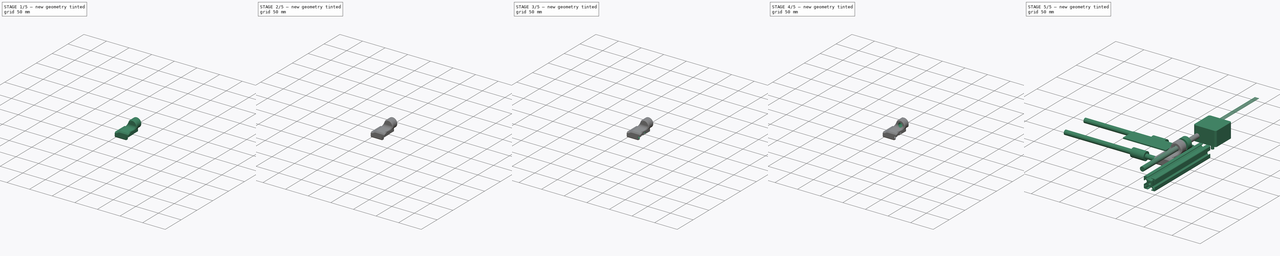
[diagram: build sequence overview — one tinted view per stage of 5, left to right]
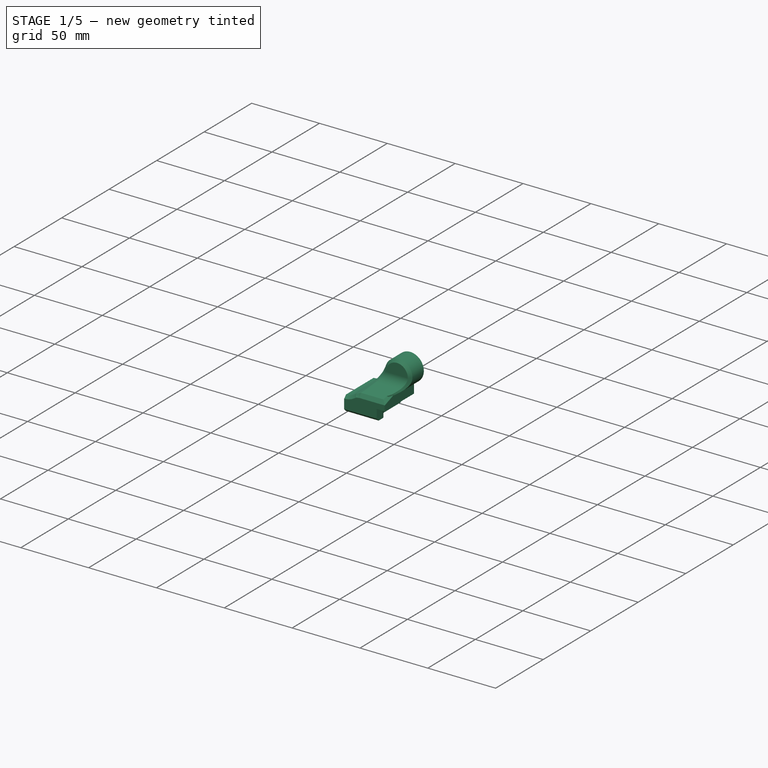
[diagram: stage 1 of 5 — iso view after this stage's code; geometry added in this stage tinted green]
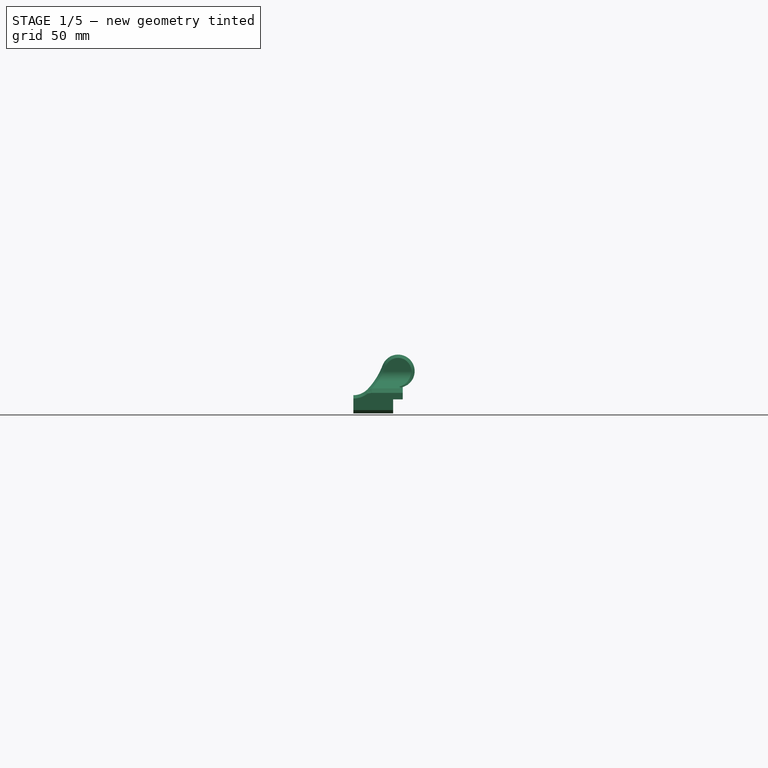
[diagram: stage 1 of 5 — front view after this stage's code; geometry added in this stage tinted green]
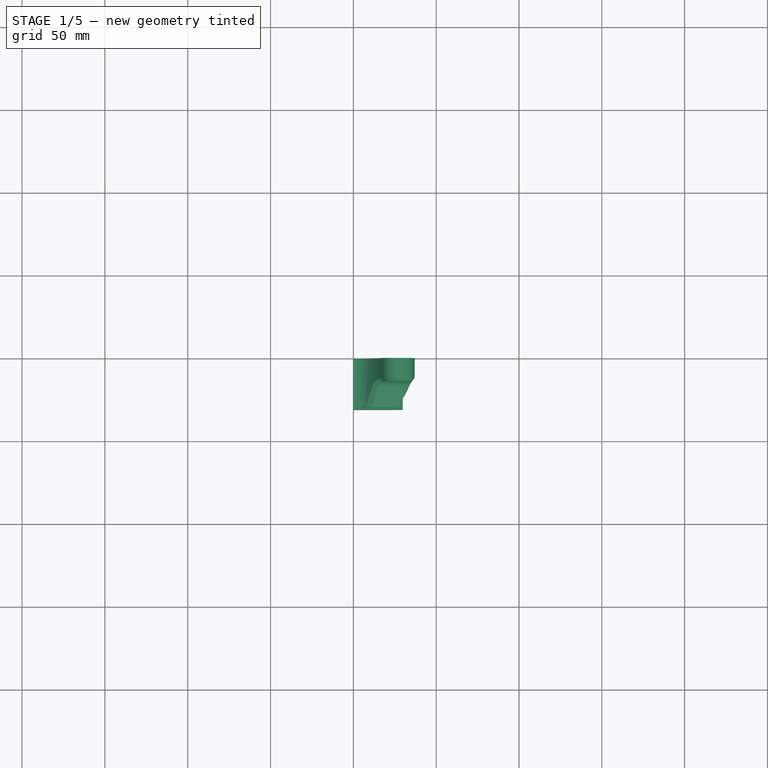
[diagram: stage 1 of 5 — top view after this stage's code; geometry added in this stage tinted green]
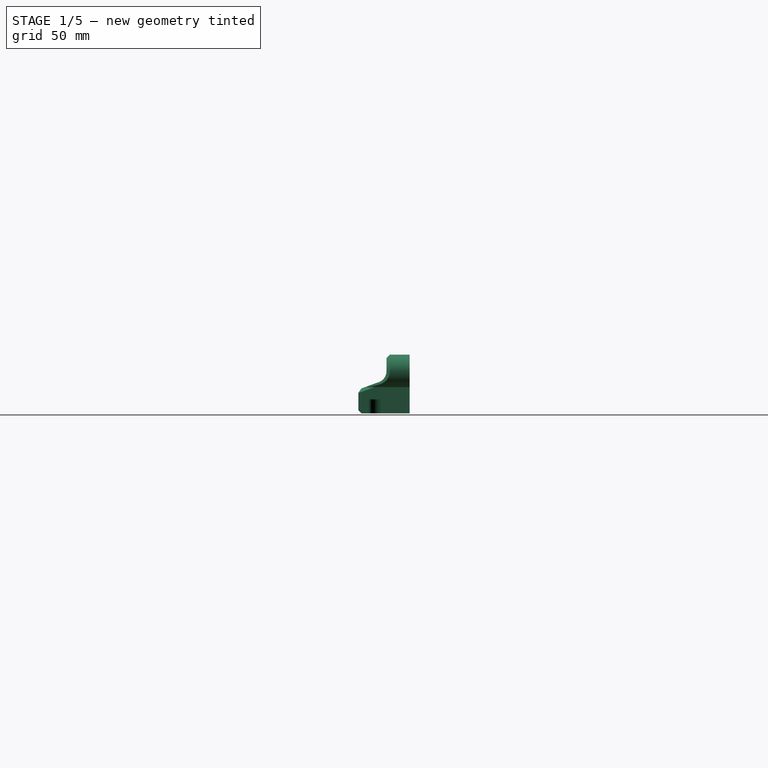
[diagram: stage 1 of 5 — right view after this stage's code; geometry added in this stage tinted green]
FCSTD DOCUMENT  (FreeCAD 0.16R5342 (Git))
Label: Ycarriage
License: All rights reserved
LicenseURL: http://en.wikipedia.org/wiki/All_rights_reserved
objects: Part::Feature×12, Sketcher::SketchObject×11, PartDesign::Pocket×9, PartDesign::Pad×2, Part::Chamfer×2, Part::Fillet×2, Part::Compound×1, Part::Mirroring×1, Part::MultiFuse×1, App::DocumentObjectGroup×1
note: 52 computed .brp shape members not serialized (recipe doc carries the construction recipe); baked Part::Feature solids carry a one-line shape summary decoded from their .brp

FEATURE [Sketcher::SketchObject] Sketch  label="Base"
  Placement = pos=(0,0,0) rot=(-1,0,0;4.71239rad)
  sketch-geometry (7):
    g0: LineSegment StartX=0 StartY=5.5 StartZ=0 EndX=0 EndY=-5.5 EndZ=0
    g1: LineSegment StartX=0 StartY=-5.5 StartZ=0 EndX=29.8 EndY=-5.5 EndZ=0
    g2: LineSegment StartX=29.8 StartY=-5.5 StartZ=0 EndX=29.8 EndY=10.4 EndZ=0
    g3: ArcOfCircle CenterX=27 CenterY=20 CenterZ=0 NormalX=0 NormalY=0 NormalZ=1 Radius=10 StartAngle=4.99618 EndAngle=9.06324
    g4: GeomPoint [constr] X=0 Y=0 Z=0
    g5: ArcOfCircle CenterX=-22.5738 CenterY=38.7468 CenterZ=0 NormalX=0 NormalY=0 NormalZ=1 Radius=43 StartAngle=5.52806 EndAngle=5.92165
    g6: ArcOfCircle CenterX=0 CenterY=17.5 CenterZ=0 NormalX=0 NormalY=0 NormalZ=1 Radius=12 StartAngle=4.71239 EndAngle=5.52806
  constraints (22):
    c: Coincident(g0,g1)
    c: Coincident(g2,g3)
    c: Vertical(g0)
    c: Horizontal(g1)
    c: PointOnObject(g0,g-2)
    c: DistanceX(g3) = 27
    c: DistanceY(g3) = 20
    c: Radius(g3) = 10
    c: DistanceY(g0) = -11
    c: Symmetric(g0,g0,g4)
    c: PointOnObject(g4,g-1)
    c: Vertical(g2)
    c: Coincident(g2,g1)
    c: DistanceX(g1) = 29.8
    c: Coincident(g6,g5)
    c: Coincident(g5,g3)
    c: Tangent(g5,g3)
    c: Tangent(g5,g6)
    c: Coincident(g6,g0)
    c: Perpendicular(g6,g0)
    c: Radius(g6) = 12
    c: Radius(g5) = 43
FEATURE [PartDesign::Pad] Pad  label="Base001"
  Length = 31
  Length2 = 100
  Placement = pos=(0,0,0) rot=(-1,0,0;4.71239rad)
  Sketch = -> Sketch
  Type = 0
FEATURE [Sketcher::SketchObject] Sketch001  label="SideCut"
  Placement = pos=(0,0,0) rot=(0.707107,0,-0.707107;3.14159rad)
  Support = -> Pad [Face1]
  sketch-geometry (6):
    g0: GeomPoint [constr] X=-30 Y=14 Z=0
    g1: ArcOfCircle CenterX=-20 CenterY=21 CenterZ=0 NormalX=0 NormalY=0 NormalZ=1 Radius=7 StartAngle=4.71239 EndAngle=5.93412
    g2: LineSegment StartX=-20 StartY=14 StartZ=0 EndX=-43.1703 EndY=14 EndZ=0
    g3: LineSegment StartX=-13.4222 StartY=18.6058 StartZ=0 EndX=-7.32195 EndY=35.3661 EndZ=0
    g4: LineSegment StartX=-43.1703 StartY=14 StartZ=0 EndX=-43.1703 EndY=35.3661 EndZ=0
    g5: LineSegment StartX=-43.1703 StartY=35.3661 StartZ=0 EndX=-7.32195 EndY=35.3661 EndZ=0
  constraints (16):
    c: DistanceX(g0) = -30
    c: DistanceY(g0) = 14
    c: Horizontal(g2)
    c: Tangent(g1,g2)
    c: Coincident(g3,g1)
    c: Tangent(g3,g1)
    c: Coincident(g4,g5)
    c: Coincident(g4,g2)
    c: Coincident(g5,g3)
    c: Horizontal(g5)
    c: Vertical(g4)
    c: Coincident(g2,g1)
    c: PointOnObject(g0,g2)
    c: Angle(g3) = 1.22173
    c: DistanceX(g0,g1) = 10
    c: Radius(g1) = 7
FEATURE [PartDesign::Pocket] Pocket  label="SideCut001"
  Length = 5
  Placement = pos=(0,0,0) rot=(-1,0,0;4.71239rad)
  Sketch = -> Sketch001
  Type = 1
FEATURE [Part::Chamfer] Chamfer
  Base = -> Pocket
  Edges = 11 edges r=2: [Edge7,Edge8,Edge11,Edge16,Edge18,Edge19,Edge20,Edge21,Edge22,Edge25,Edge26]
FEATURE [Sketcher::SketchObject] Sketch002  label="PulleyPocket"
  Placement = pos=(0,0,-5.5) rot=(1,0,0;3.14159rad)
  Support = -> Chamfer [Face6]
  sketch-geometry (7):
    g0: LineSegment StartX=20 StartY=17 StartZ=0 EndX=20 EndY=-6.649 EndZ=0
    g1: LineSegment StartX=20 StartY=-6.649 StartZ=0 EndX=40.092 EndY=-6.649 EndZ=0
    g2: LineSegment StartX=40.092 StartY=-6.649 StartZ=0 EndX=40.092 EndY=32.3883 EndZ=0
    g3: ArcOfCircle CenterX=27 CenterY=17 CenterZ=0 NormalX=0 NormalY=0 NormalZ=1 Radius=7 StartAngle=2.21566 EndAngle=3.14159
    g4: ArcOfCircle CenterX=20.9726 CenterY=25.0137 CenterZ=0 NormalX=0 NormalY=0 NormalZ=1 Radius=3.02736 StartAngle=5.35726 EndAngle=6.28319
    g5: LineSegment StartX=24 StartY=25.0137 StartZ=0 EndX=24 EndY=32.3883 EndZ=0
    g6: LineSegment StartX=24 StartY=32.3883 StartZ=0 EndX=40.092 EndY=32.3883 EndZ=0
  constraints (19):
    c: Coincident(g0,g1)
    c: Coincident(g1,g2)
    c: Horizontal(g1)
    c: Vertical(g0)
    c: Vertical(g2)
    c: DistanceX(g3) = 27
    c: DistanceY(g3) = 17
    c: Radius(g3) = 7
    c: Coincident(g0,g3)
    c: Tangent(g3,g0)
    c: Coincident(g4,g3)
    c: Tangent(g4,g3)
    c: Coincident(g5,g6)
    c: Coincident(g6,g2)
    c: Coincident(g5,g4)
    c: Vertical(g5)
    c: Horizontal(g6)
    c: Tangent(g4,g5)
    c: DistanceX(g5) = 24
FEATURE [PartDesign::Pocket] Pocket001  label="PulleyPocket001"
  Length = 8.5
  Sketch = -> Sketch002
  Type = 0
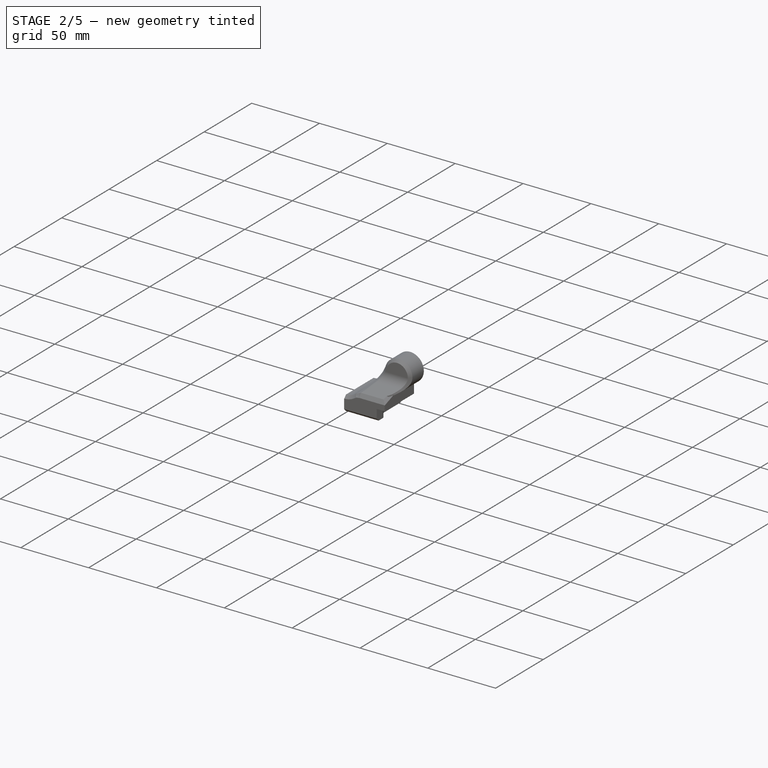
[diagram: stage 2 of 5 — iso view after this stage's code; geometry added in this stage tinted green]
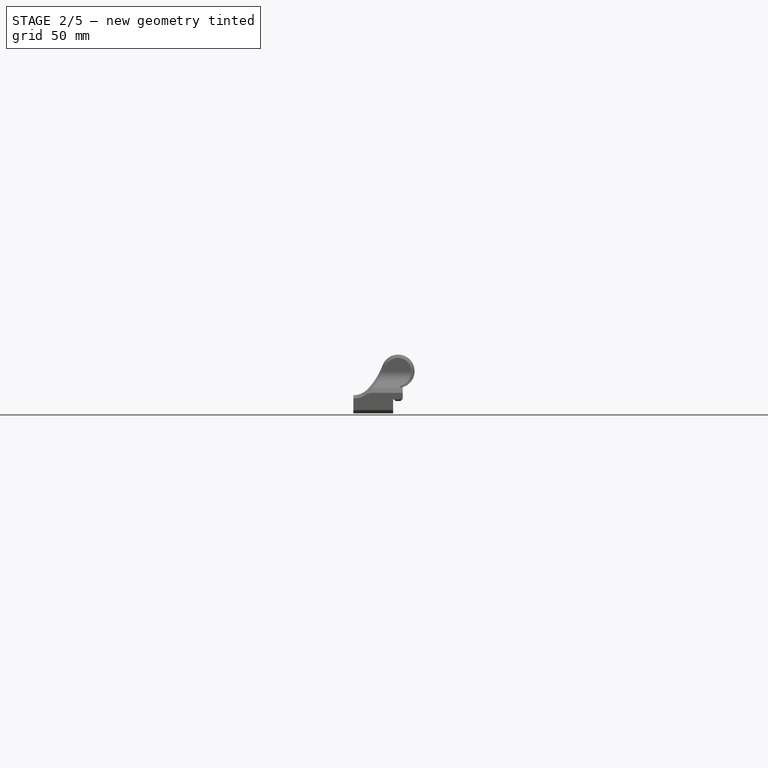
[diagram: stage 2 of 5 — front view after this stage's code; geometry added in this stage tinted green]
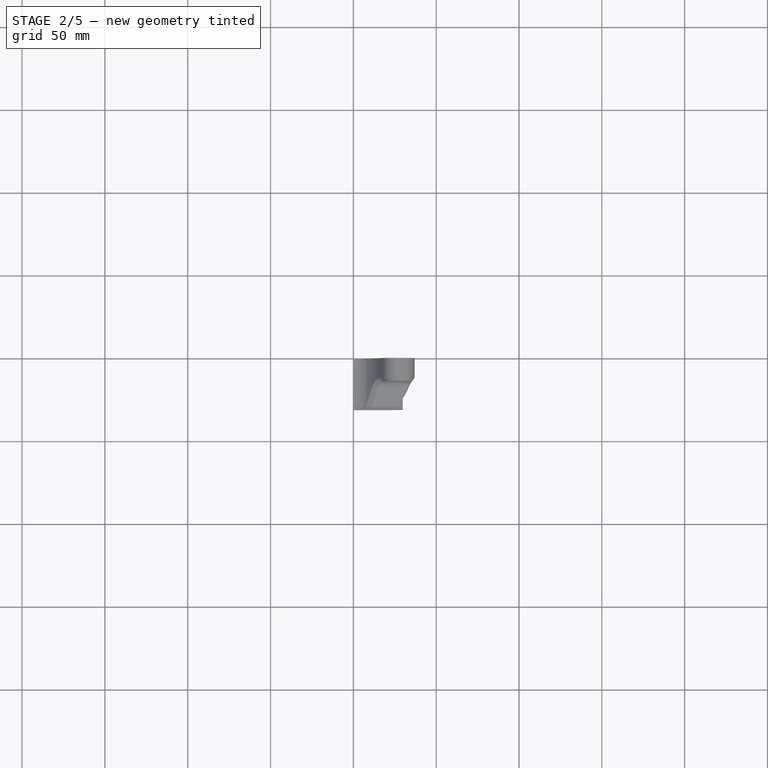
[diagram: stage 2 of 5 — top view after this stage's code; geometry added in this stage tinted green]
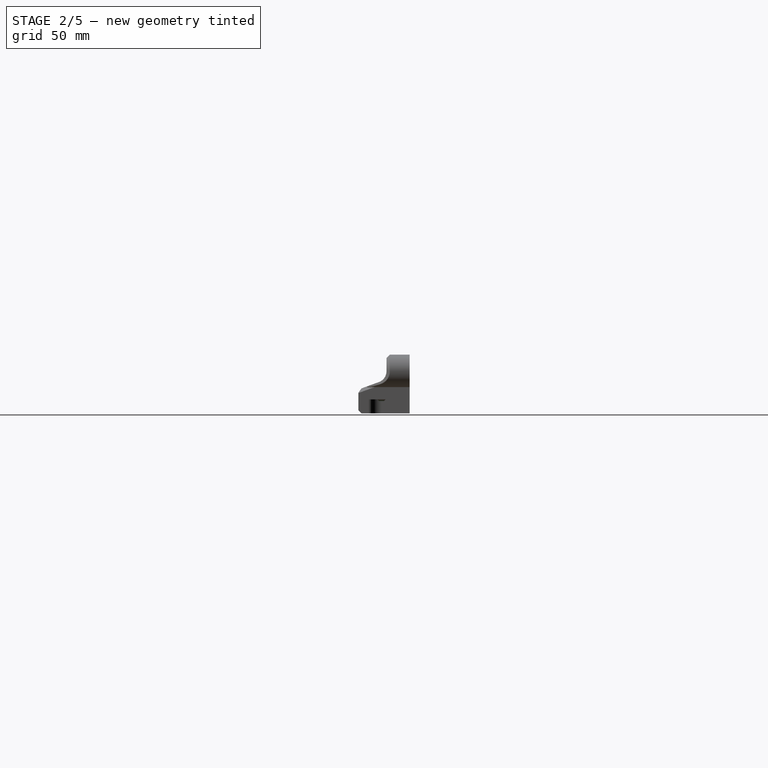
[diagram: stage 2 of 5 — right view after this stage's code; geometry added in this stage tinted green]
FEATURE [Sketcher::SketchObject] Sketch003  label="BearingPad"
  Placement = pos=(0,0,3) rot=(1,0,0;3.14159rad)
  Support = -> Pocket001 [Face12]
  sketch-geometry (1):
    g0: Circle CenterX=27 CenterY=17 CenterZ=0 NormalX=0 NormalY=0 NormalZ=1 Radius=2.5
  constraints (3):
    c: DistanceX(g0) = 27
    c: DistanceY(g0) = 17
    c: Radius(g0) = 2.5
FEATURE [PartDesign::Pad] Pad001  label="BearingPad001"
  Length = 1
  Length2 = 100
  Sketch = -> Sketch003
  Type = 0
FEATURE [Part::Chamfer] Chamfer001  label="PrintableChamfer"
  Base = -> Pad001
  Edges = 1 edges r=0.99: [Edge68]
FEATURE [Sketcher::SketchObject] Sketch004  label="BearingBolt"
  Placement = pos=(0,0,2) rot=(1,0,0;3.14159rad)
  Support = -> Chamfer001 [Face4]
  sketch-geometry (1):
    g0: Circle CenterX=27 CenterY=17 CenterZ=0 NormalX=0 NormalY=0 NormalZ=1 Radius=1.5
  constraints (3):
    c: DistanceY(g0) = 17
    c: DistanceX(g0) = 27
    c: Radius(g0) = 1.5
FEATURE [PartDesign::Pocket] Pocket002  label="BearingBolt001"
  Length = 10
  Sketch = -> Sketch004
  Type = 0
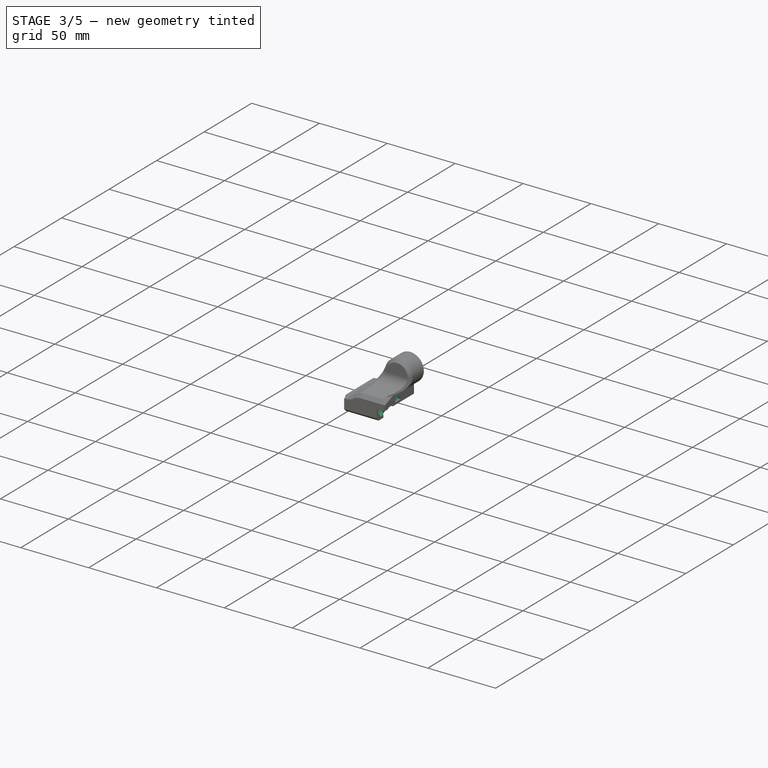
[diagram: stage 3 of 5 — iso view after this stage's code; geometry added in this stage tinted green]
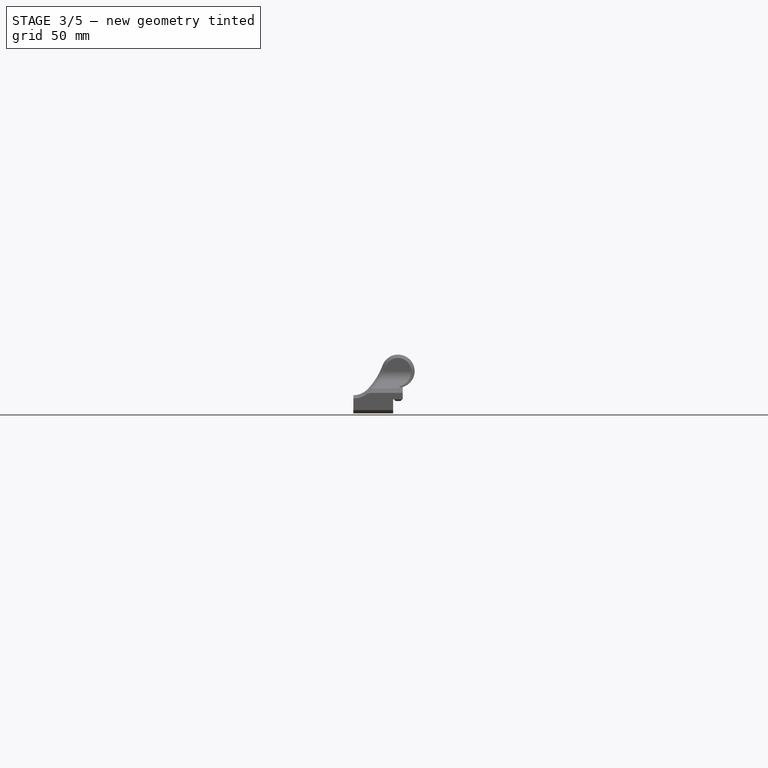
[diagram: stage 3 of 5 — front view after this stage's code; geometry added in this stage tinted green]
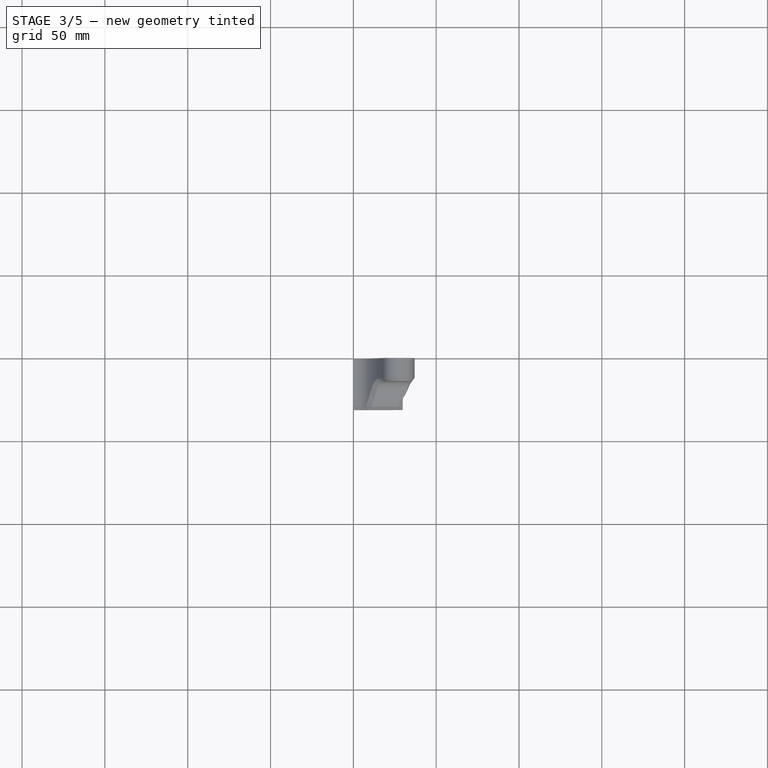
[diagram: stage 3 of 5 — top view after this stage's code; geometry added in this stage tinted green]
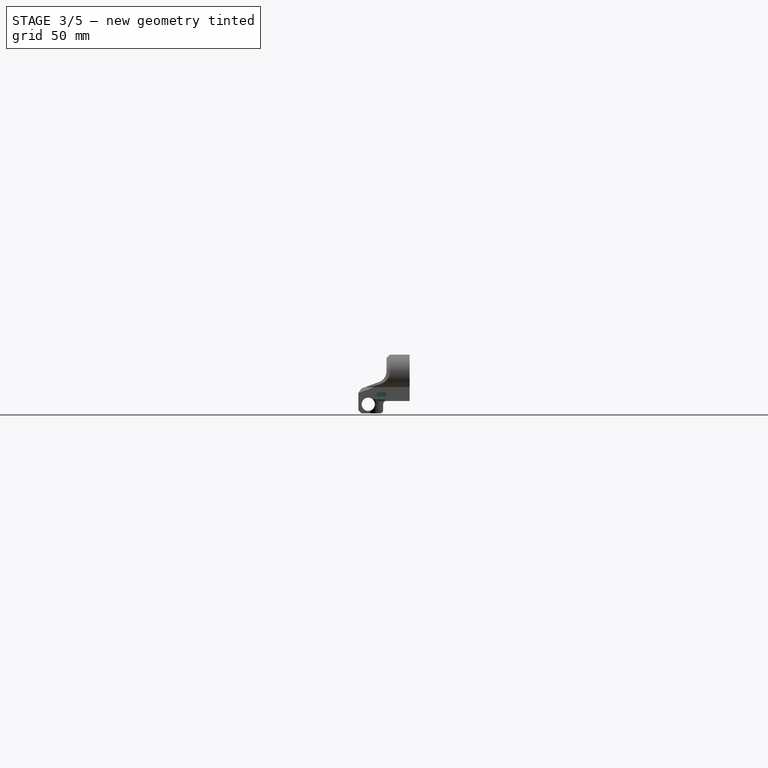
[diagram: stage 3 of 5 — right view after this stage's code; geometry added in this stage tinted green]
FEATURE [Sketcher::SketchObject] Sketch005  label="BearingNut"
  Placement = pos=(29.8,0,0) rot=(0.57735,0.57735,0.57735;2.0944rad)
  Support = -> Pocket002 [Face11]
  sketch-geometry (5):
    g0: LineSegment StartX=-19.8 StartY=7.3 StartZ=0 EndX=-14.2 EndY=7.3 EndZ=0
    g1: LineSegment StartX=-14.2 StartY=7.3 StartZ=0 EndX=-14.2 EndY=4.7 EndZ=0
    g2: LineSegment StartX=-14.2 StartY=4.7 StartZ=0 EndX=-19.8 EndY=4.7 EndZ=0
    g3: LineSegment StartX=-19.8 StartY=4.7 StartZ=0 EndX=-19.8 EndY=7.3 EndZ=0
    g4: GeomPoint [constr] X=-17 Y=6 Z=0
  constraints (13):
    c: Coincident(g0,g1)
    c: Coincident(g1,g2)
    c: Coincident(g2,g3)
    c: Coincident(g3,g0)
    c: Horizontal(g0)
    c: Horizontal(g2)
    c: Vertical(g1)
    c: Vertical(g3)
    c: DistanceY(g1) = -2.6
    c: DistanceX(g2) = -5.6
    c: Symmetric(g0,g1,g4)
    c: DistanceX(g4) = -17
    c: DistanceY(g4) = 6
FEATURE [PartDesign::Pocket] Pocket003  label="BearingNut001"
  Length = 7
  Sketch = -> Sketch005
  Type = 0
FEATURE [Sketcher::SketchObject] Sketch006  label="StringLane"
  Placement = pos=(20,0,0) rot=(0.57735,0.57735,0.57735;2.0944rad)
  Support = -> Pocket003 [Face7]
  sketch-geometry (4):
    g0: LineSegment StartX=-16 StartY=2 StartZ=0 EndX=0 EndY=2 EndZ=0
    g1: LineSegment StartX=0 StartY=2 StartZ=0 EndX=0 EndY=-9.75625 EndZ=0
    g2: LineSegment StartX=0 StartY=-9.75625 StartZ=0 EndX=-16 EndY=-9.75625 EndZ=0
    g3: LineSegment StartX=-16 StartY=-9.75625 StartZ=0 EndX=-16 EndY=2 EndZ=0
  constraints (11):
    c: Coincident(g0,g1)
    c: Coincident(g1,g2)
    c: Coincident(g2,g3)
    c: Coincident(g3,g0)
    c: Horizontal(g0)
    c: Horizontal(g2)
    c: Vertical(g1)
    c: Vertical(g3)
    c: PointOnObject(g1,g-2)
    c: DistanceX(g0) = 16
    c: DistanceY(g0) = 2
FEATURE [PartDesign::Pocket] Pocket004  label="StringLane001"
  Length = 5
  Sketch = -> Sketch006
  Type = 1
FEATURE [Part::Fillet] Fillet
  Base = -> Pocket004
  Edges = 2 edges r=2: [Edge47,Edge50]
FEATURE [Sketcher::SketchObject] Sketch007  label="XRod"
  Placement = pos=(0,0,0) rot=(0.57735,-0.57735,-0.57735;2.0944rad)
  Support = -> Fillet [Face7]
  sketch-geometry (1):
    g0: Circle CenterX=25 CenterY=0 CenterZ=0 NormalX=0 NormalY=0 NormalZ=1 Radius=4
  constraints (3):
    c: PointOnObject(g0,g-1)
    c: Radius(g0) = 4
    c: DistanceX(g0) = 25
FEATURE [PartDesign::Pocket] Pocket005  label="XRod001"
  Length = 5
  Sketch = -> Sketch007
  Type = 1
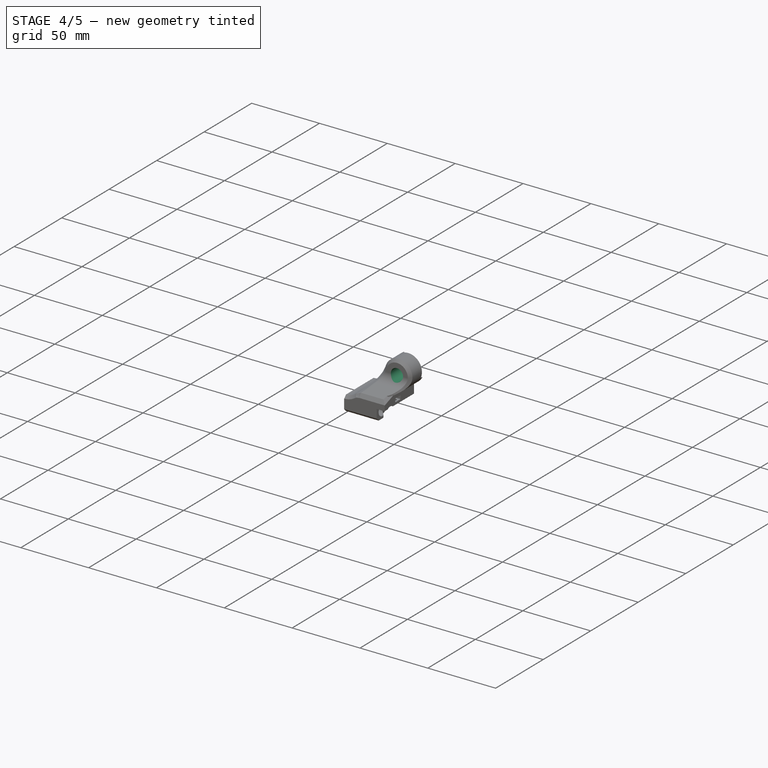
[diagram: stage 4 of 5 — iso view after this stage's code; geometry added in this stage tinted green]
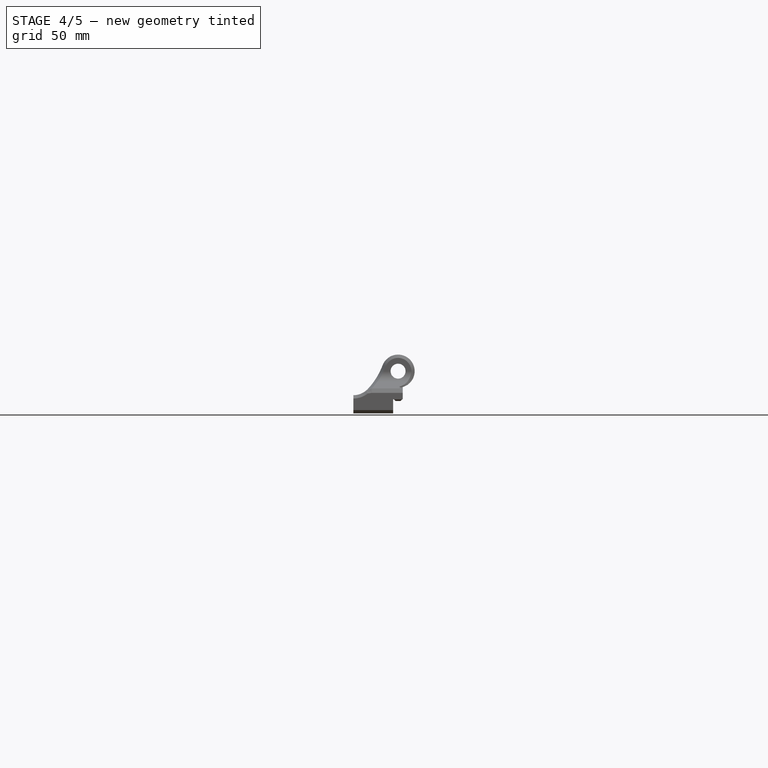
[diagram: stage 4 of 5 — front view after this stage's code; geometry added in this stage tinted green]
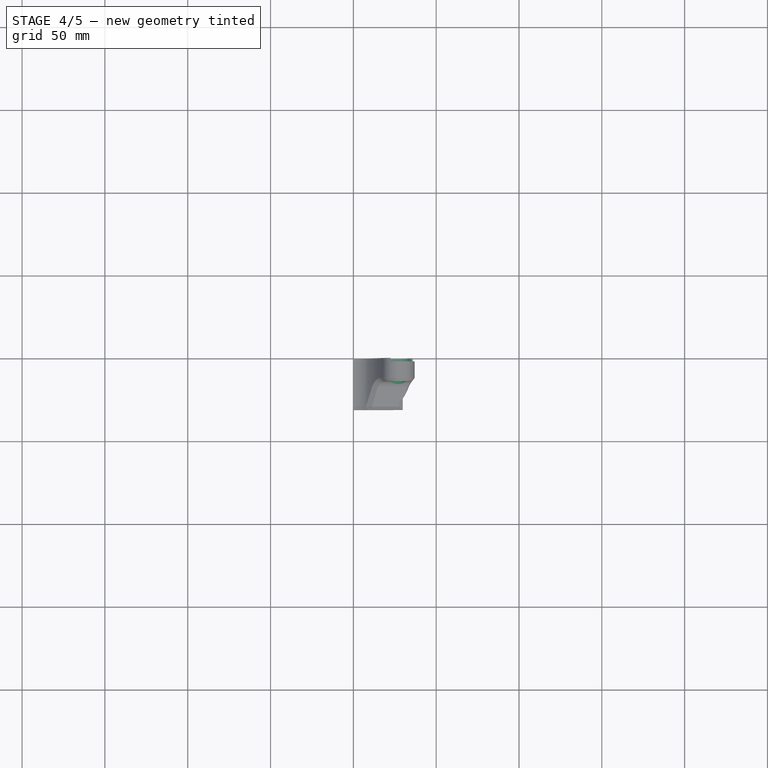
[diagram: stage 4 of 5 — top view after this stage's code; geometry added in this stage tinted green]
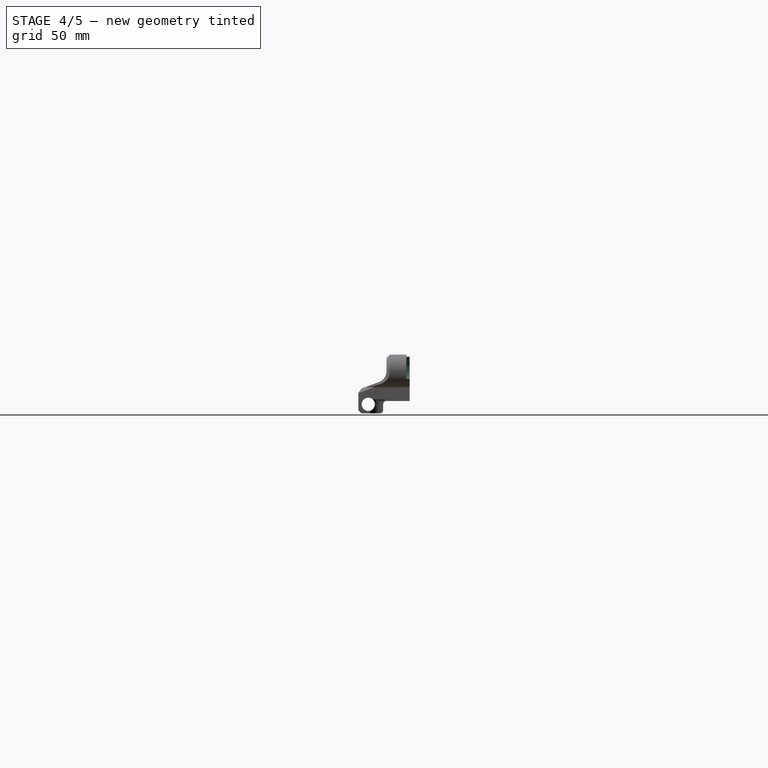
[diagram: stage 4 of 5 — right view after this stage's code; geometry added in this stage tinted green]
FEATURE [Sketcher::SketchObject] Sketch008  label="YRod"
  Placement = pos=(0,-31,0) rot=(1,0,0;1.5708rad)
  Support = -> Pocket005 [Face20]
  sketch-geometry (1):
    g0: Circle CenterX=27 CenterY=20 CenterZ=0 NormalX=0 NormalY=0 NormalZ=1 Radius=4.5
  constraints (3):
    c: Radius(g0) = 4.5
    c: DistanceX(g0) = 27
    c: DistanceY(g0) = 20
FEATURE [PartDesign::Pocket] Pocket006  label="YRod001"
  Length = 5
  Sketch = -> Sketch008
  Type = 1
FEATURE [Sketcher::SketchObject] Sketch009  label="TieHole"
  Placement = pos=(0,0,0) rot=(0,0.707107,0.707107;3.14159rad)
  Support = -> Pocket006 [Face12]
  sketch-geometry (7):
    g0: LineSegment [constr] StartX=-42.4144 StartY=24.1007 StartZ=0 EndX=-32.6569 EndY=14.3431 EndZ=0
    g1: LineSegment [constr] StartX=-31.1007 StartY=35.4144 StartZ=0 EndX=-21.3431 EndY=25.6569 EndZ=0
    g2: ArcOfCircle [constr] CenterX=-27 CenterY=20 CenterZ=0 NormalX=0 NormalY=0 NormalZ=1 Radius=8 StartAngle=3.92699 EndAngle=7.06858
    g3: LineSegment StartX=-20.636 StartY=26.364 StartZ=0 EndX=-30.3936 EndY=36.1215 EndZ=0
    g4: LineSegment StartX=-30.3936 StartY=36.1215 StartZ=0 EndX=-43.1215 EndY=23.3936 EndZ=0
    g5: LineSegment StartX=-43.1215 StartY=23.3936 StartZ=0 EndX=-33.364 EndY=13.636 EndZ=0
    g6: ArcOfCircle CenterX=-27 CenterY=20 CenterZ=0 NormalX=0 NormalY=0 NormalZ=1 Radius=9 StartAngle=3.92699 EndAngle=7.06858
  constraints (22):
    c: Coincident(g2,g1)
    c: Coincident(g2,g0)
    c: Tangent(g2,g0)
    c: Tangent(g1,g2)
    c: DistanceY(g2) = 20
    c: DistanceX(g2) = -27
    c: Coincident(g3,g4)
    c: PointOnObject(g1,g4)
    c: Coincident(g6,g2)
    c: Coincident(g5,g6)
    c: Coincident(g3,g6)
    c: Radius(g2) = 8
    c: Tangent(g5,g6)
    c: Tangent(g3,g6)
    c: Parallel(g1,g3)
    c: Parallel(g0,g5)
    c: Perpendicular(g3,g4)
    c: Angle(g1) = -0.785398
    c: Coincident(g5,g4)
    c: PointOnObject(g0,g4)
    c: Distance(g4) = 18
    c: Parallel(g0,g1)
FEATURE [PartDesign::Pocket] Pocket007  label="TieHole001"
  Length = 2
  Sketch = -> Sketch009
  Type = 0
FEATURE [Part::Fillet] Fillet001
  Base = -> Pocket007
  Edges = 2 edges r=0.3: [Edge79,Edge81]
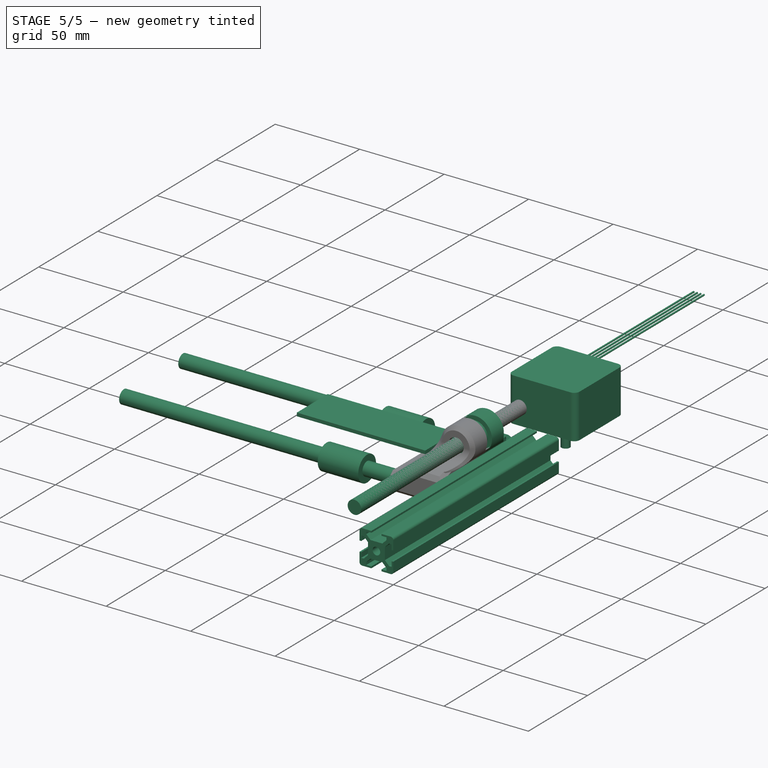
[diagram: stage 5 of 5 — iso view after this stage's code; geometry added in this stage tinted green]
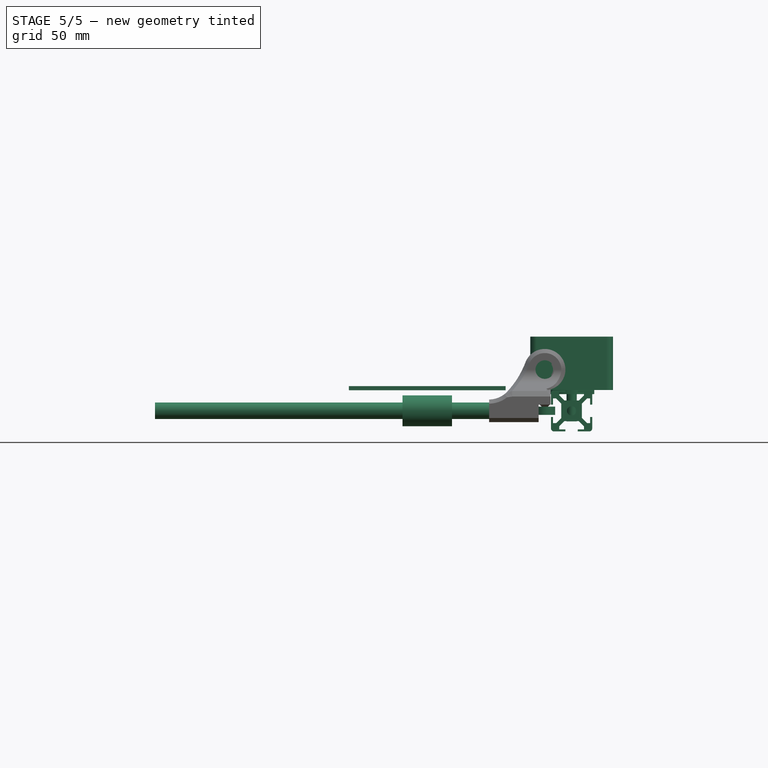
[diagram: stage 5 of 5 — front view after this stage's code; geometry added in this stage tinted green]
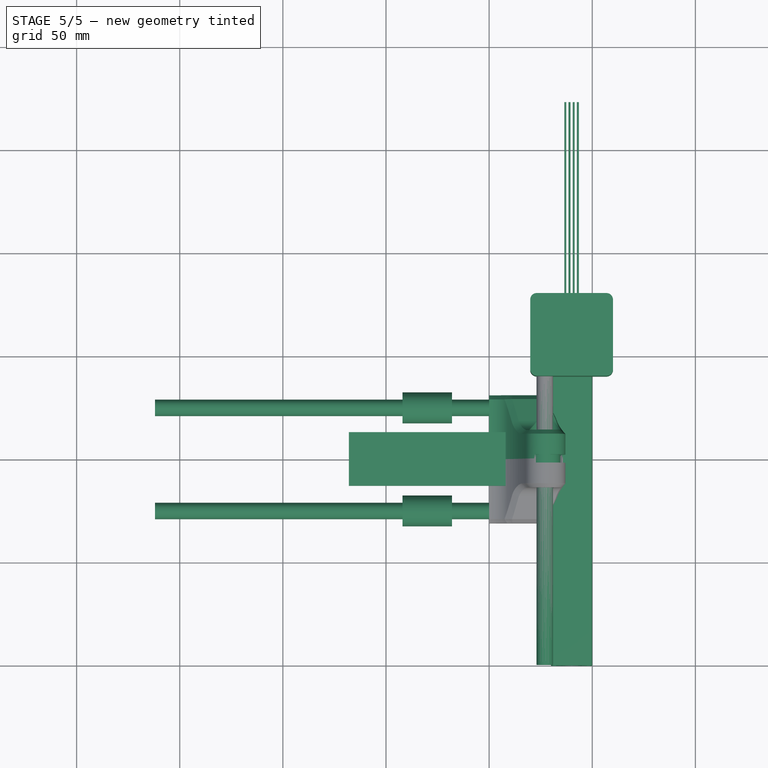
[diagram: stage 5 of 5 — top view after this stage's code; geometry added in this stage tinted green]
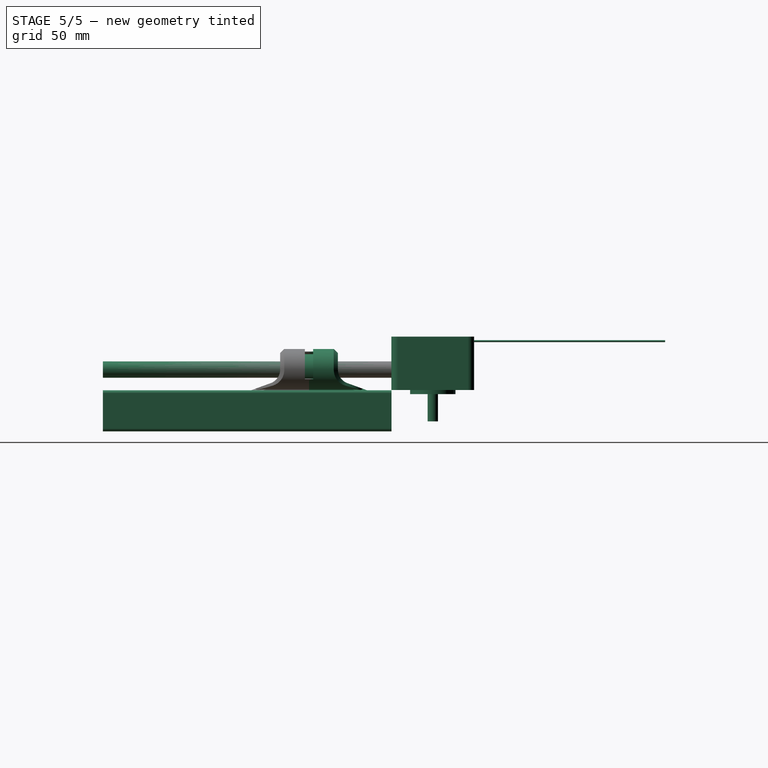
[diagram: stage 5 of 5 — right view after this stage's code; geometry added in this stage tinted green]
FEATURE [Part::Feature] Part__Mirroring002001  label="4018X SNGL (Mirror #3)001"
  shape: bbox 40.13 x 132.8 x 41.15 mm, 30 faces (baked)
FEATURE [Part::Feature] Part__Mirroring009001  label="T slot extrusion 20x20x140.001 (Mirror #2)001"
  shape: bbox 20 x 140 x 20 mm, 51 faces (baked)
FEATURE [Part::Feature] Part__Mirroring004001  label="YBar (Mirror #5)001"
  shape: bbox 8 x 140 x 8 mm, 3 faces (baked)
FEATURE [Part::Feature] Part__Mirroring008001  label="LM8UU001 (Mirror #7)001"
  Placement = pos=(0,30,0) rot=(0,0,1;0rad)
  shape: bbox 15 x 24 x 15 mm, 3 faces (baked)
FEATURE [Part::Feature] Cylinder004001  label="623ZZ001"
  Placement = pos=(0,30,0) rot=(0,0,1;0rad)
  shape: bbox 10 x 10 x 4 mm, 3 faces (baked)
FEATURE [Part::Feature] Part__Mirroring007001  label="623ZZ (Mirror #8)001"
  Placement = pos=(0,30,0) rot=(0,0,1;0rad)
  shape: bbox 10 x 10 x 4 mm, 3 faces (baked)
FEATURE [Part::Feature] Cylinder002001  label="LM8UU001"
  Placement = pos=(40,30,0) rot=(0,0,1;0rad)
  shape: bbox 24 x 15 x 15 mm, 3 faces (baked)
FEATURE [Part::Feature] Part__Mirroring006001  label="LM8UU (Mirror #6)001"
  Placement = pos=(40,30,0) rot=(0,0,1;0rad)
  shape: bbox 24 x 15 x 15 mm, 3 faces (baked)
FEATURE [Part::Feature] Box001  label="Sample001"
  Placement = pos=(40,30,0) rot=(0,0,1;0rad)
  shape: bbox 76 x 26 x 2 mm, 6 faces (baked)
FEATURE [Part::Feature] Cylinder001001  label="XBar001"
  Placement = pos=(0,30,0) rot=(0,0,1;0rad)
  shape: bbox 184 x 8 x 8 mm, 3 faces (baked)
FEATURE [Part::Feature] Part__Mirroring003001  label="XBar (Mirror #4)001"
  Placement = pos=(0,30,0) rot=(0,0,1;0rad)
  shape: bbox 184 x 8 x 8 mm, 3 faces (baked)
FEATURE [Part::Compound] Compound  label="Reference"
  Links = -> [Part__Mirroring002001,Part__Mirroring009001,Part__Mirroring003001,Part__Mirroring008001,Cylinder001001,Box001,Part__Mirroring006001,Part__Mirroring004001,Cylinder004001,Cylinder002001,Part__Mirroring007001]
  Placement = pos=(-70,-30,-10) rot=(0,0,1;0rad)
FEATURE [Part::Mirroring] Part__Mirroring009002  label="Fillet001 (Mirror #2)"
  Base = (0,0,0)
  Normal = (0,1,0)
  Source = -> Fillet001
FEATURE [Part::MultiFuse] Fusion
  Shapes = -> [Part__Mirroring009002,Fillet001]
FEATURE [Sketcher::SketchObject] Sketch010  label="LM8UUHole"
  Placement = pos=(0,31,0) rot=(0,0.707107,0.707107;3.14159rad)
  Support = -> Fusion [Face7]
  sketch-geometry (1):
    g0: Circle CenterX=-27 CenterY=20 CenterZ=0 NormalX=0 NormalY=0 NormalZ=1 Radius=7.5
  constraints (3):
    c: DistanceY(g0) = 20
    c: DistanceX(g0) = -27
    c: Radius(g0) = 7.5
FEATURE [PartDesign::Pocket] Pocket008  label="LM8UUHole001"
  Length = 43
  Sketch = -> Sketch010
  Type = 0
FEATURE [App::DocumentObjectGroup] Group  label="src"
  Group = -> [Pad,Chamfer,Pocket001,Chamfer001,Pocket002,Pocket003,Fillet,Pocket005,Pocket006,Fusion,Pocket008]
FEATURE [Part::Feature] Pocket008001  label="Ycarriage"
  shape: bbox 37.5 x 62 x 35.5 mm, 93 faces (baked)
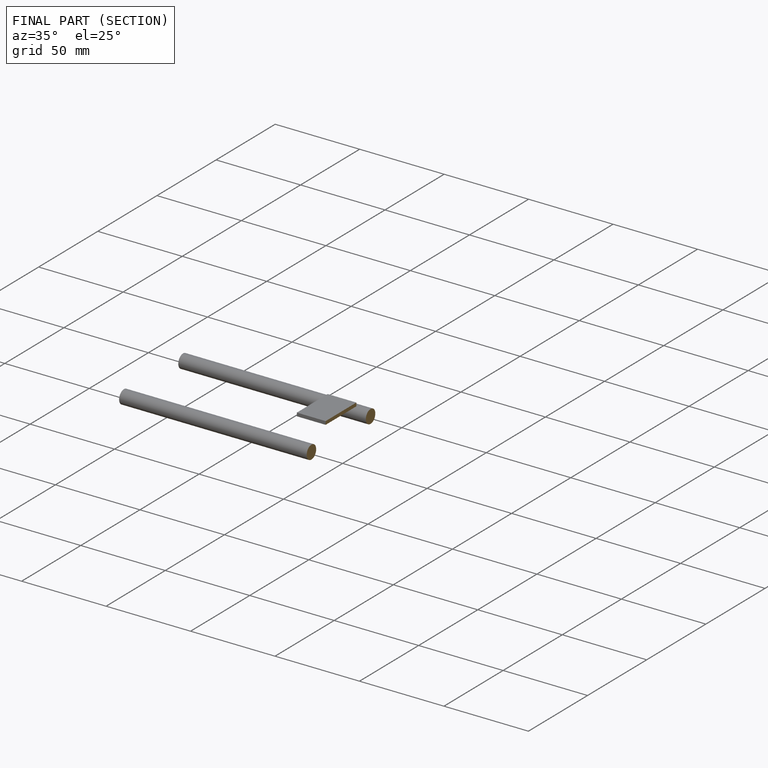
[diagram: finished part — half-section view (interior)]
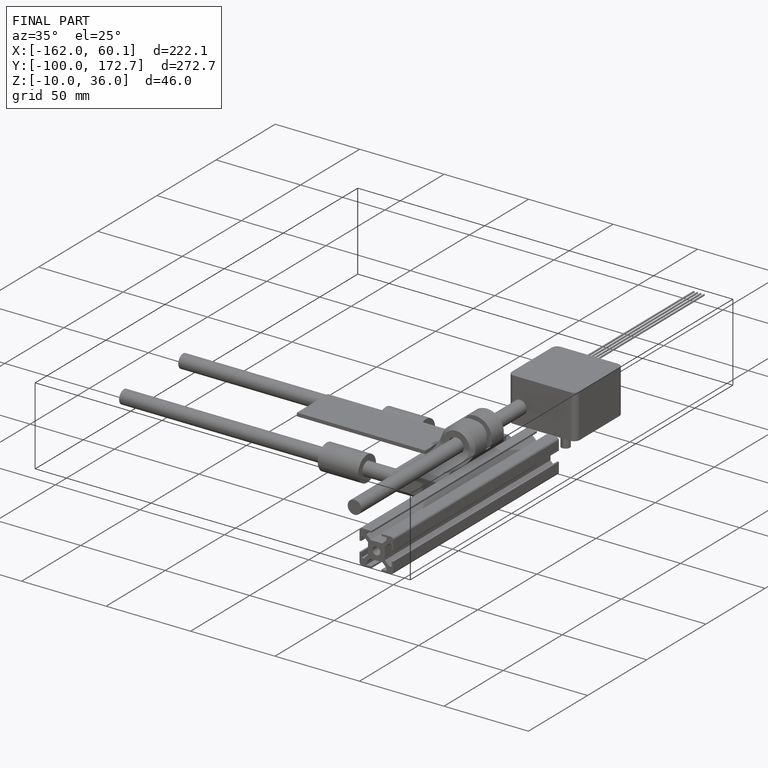
[diagram: finished part — iso view with bounding-box wireframe]
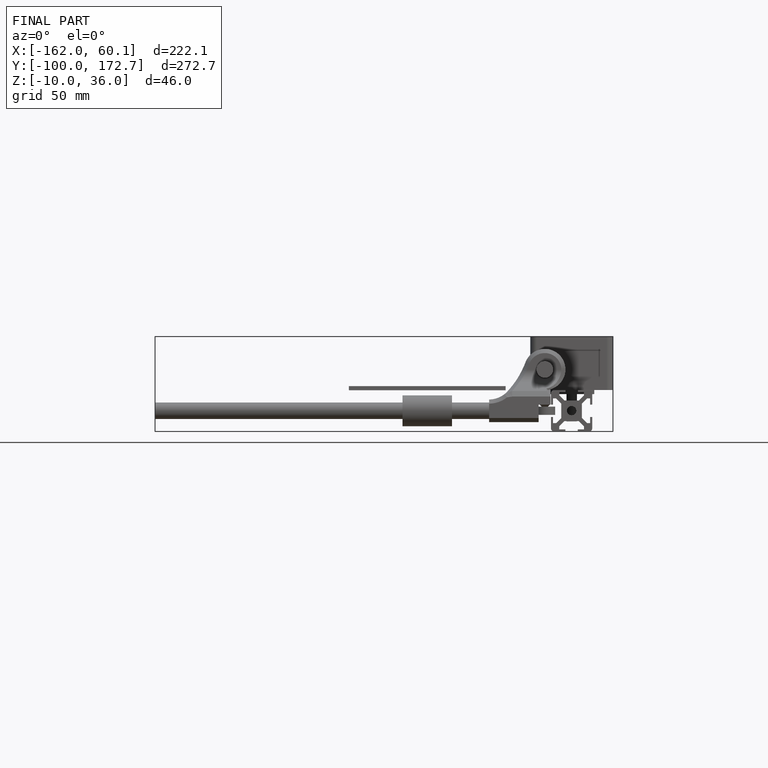
[diagram: finished part — front view with bounding-box wireframe]
